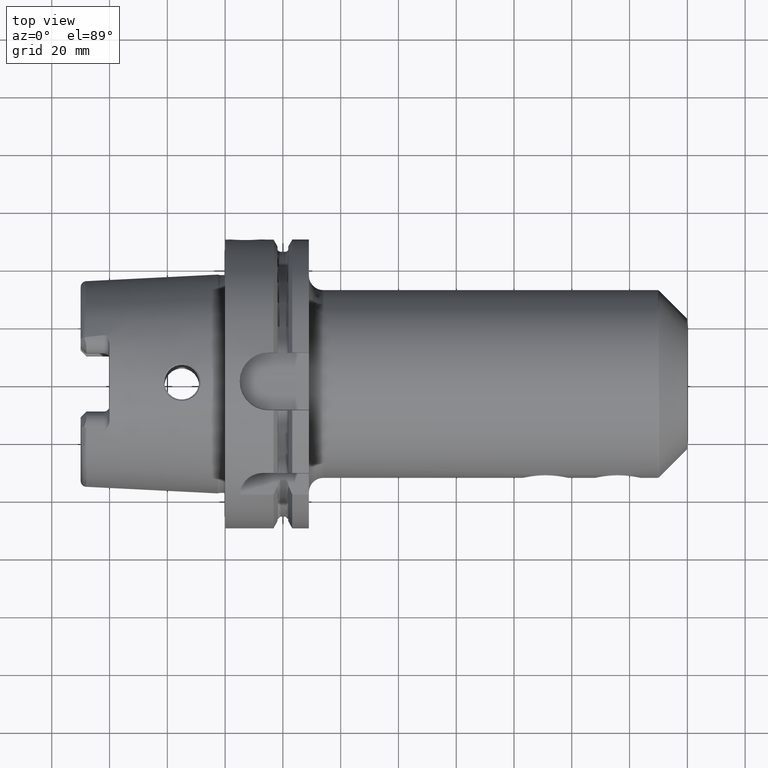
[diagram: clean part render]
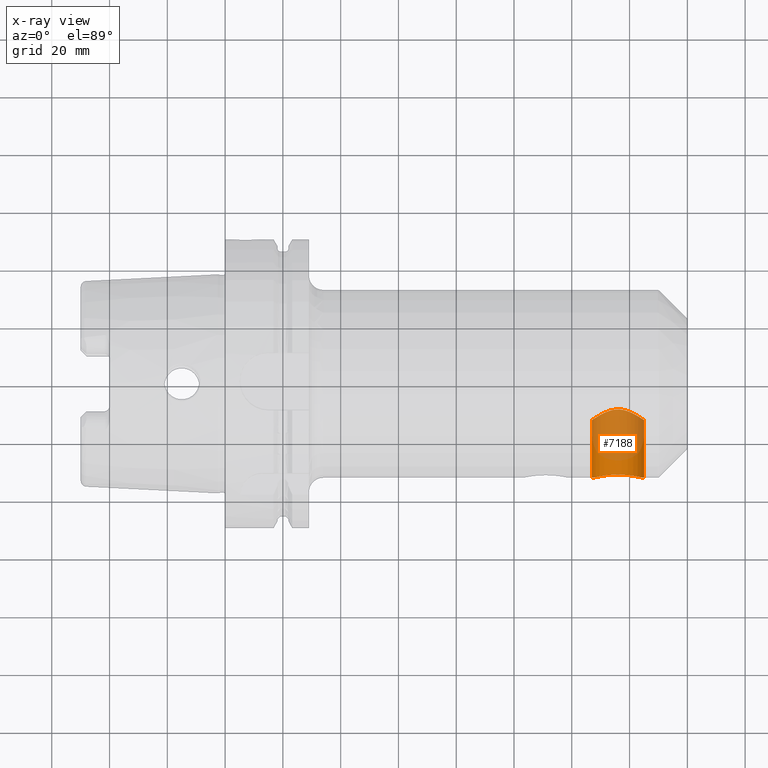
[diagram: x-ray — body ghosted, one internal face saturated and labeled with its STEP entity id]
A machine part, top view, then the same camera in x-ray: the body is ghosted and one INTERNAL B-rep face — a face not visible from any outside direction — is saturated and labeled: STEP entity #7188.
In plain terms, the highlighted cylindrical surface (edge-blend (fillet) strip) has radius 9 mm, axis along (0, -1, 0).
Its self-contained STEP definition (entity closure, byte-faithful):
#7021=CARTESIAN_POINT('',(1.45E2,-3.250001968344E1,0.E0));
#7022=CARTESIAN_POINT('',(1.45E2,-3.250001968344E1,-3.094881938547E-1));
#7023=CARTESIAN_POINT('',(1.449680654449E2,-3.249112512083E1,
-9.293102313036E-1));
#7024=CARTESIAN_POINT('',(1.448238499441E2,-3.245149692300E1,
-1.852074910782E0));
#7025=CARTESIAN_POINT('',(1.445846262735E2,-3.238704364230E1,
-2.756497811652E0));
#7026=CARTESIAN_POINT('',(1.442497119401E2,-3.229958386138E1,
-3.638572999592E0));
#7027=CARTESIAN_POINT('',(1.438233739831E2,-3.219293918069E1,
-4.482864519308E0));
#7028=CARTESIAN_POINT('',(1.433051774107E2,-3.207050160352E1,
-5.285672160082E0));
#7029=CARTESIAN_POINT('',(1.427053910497E2,-3.193871435273E1,
-6.028569251205E0));
#7030=CARTESIAN_POINT('',(1.420256433376E2,-3.180244172681E1,
-6.708027558683E0));
#7031=CARTESIAN_POINT('',(1.412822332854E2,-3.166950103985E1,
-7.307686562769E0));
#7032=CARTESIAN_POINT('',(1.404786872980E2,-3.154498235220E1,
-7.825785171339E0));
#7033=CARTESIAN_POINT('',(1.396338491225E2,-3.143578694650E1,
-8.251806861196E0));
#7034=CARTESIAN_POINT('',(1.387514553648E2,-3.134574458903E1,
-8.586227618675E0));
#7035=CARTESIAN_POINT('',(1.378479748790E2,-3.127919442270E1,
-8.824655138636E0));
#7036=CARTESIAN_POINT('',(1.369270598332E2,-3.123818118698E1,
-8.968211511703E0));
#7037=CARTESIAN_POINT('',(1.359999623654E2,-3.122439866946E1,
-9.015894739993E0));
#7038=CARTESIAN_POINT('',(1.350729246756E2,-3.123818177079E1,
-8.968209528071E0));
#7039=CARTESIAN_POINT('',(1.341519623220E2,-3.127919801651E1,
-8.824642381148E0));
#7040=CARTESIAN_POINT('',(1.332485232315E2,-3.134574662154E1,
-8.586220288935E0));
#7041=CARTESIAN_POINT('',(1.323661010604E2,-3.143579259863E1,
-8.251785376782E0));
#7042=CARTESIAN_POINT('',(1.315212866763E2,-3.154498617659E1,
-7.825769785806E0));
#7043=CARTESIAN_POINT('',(1.307177291485E2,-3.166950723306E1,
-7.307659954965E0));
#7044=CARTESIAN_POINT('',(1.299743280927E2,-3.180244723247E1,
-6.708001300673E0));
#7045=CARTESIAN_POINT('',(1.292945835654E2,-3.193871965722E1,
-6.028541653912E0));
#7046=CARTESIAN_POINT('',(1.286947956516E2,-3.207050778657E1,
-5.285634168612E0));
#7047=CARTESIAN_POINT('',(1.281766113350E2,-3.219294275361E1,
-4.482839781528E0));
#7048=CARTESIAN_POINT('',(1.277502651610E2,-3.229958971996E1,
-3.638520556875E0));
#7049=CARTESIAN_POINT('',(1.274153682222E2,-3.238704513561E1,
-2.756478906207E0));
#7050=CARTESIAN_POINT('',(1.271761432583E2,-3.245149877483E1,
-1.852042002204E0));
#7051=CARTESIAN_POINT('',(1.270319354214E2,-3.249112486027E1,
-9.293091508837E-1));
#7052=CARTESIAN_POINT('',(1.27E2,-3.250001974865E1,-3.094884400891E-1));
#7053=CARTESIAN_POINT('',(1.27E2,-3.250001974865E1,0.E0));
#7055=CARTESIAN_POINT('',(1.27E2,-1.25E1,0.E0));
#7056=CARTESIAN_POINT('',(1.27E2,-1.25E1,-2.762487769212E-1));
#7057=CARTESIAN_POINT('',(1.270254397223E2,-1.248166363746E1,
-8.314032196773E-1));
#7058=CARTESIAN_POINT('',(1.271419283458E2,-1.239805241619E1,
-1.664816731217E0));
#7059=CARTESIAN_POINT('',(1.273375002297E2,-1.225886212067E1,
-2.491536252482E0));
#7060=CARTESIAN_POINT('',(1.276186606911E2,-1.206147086625E1,
-3.318590935998E0));
#7061=CARTESIAN_POINT('',(1.279881228302E2,-1.180717121458E1,
-4.133514283220E0));
#7062=CARTESIAN_POINT('',(1.284544337494E2,-1.149504344549E1,
-4.935566438344E0));
#7063=CARTESIAN_POINT('',(1.290186194130E2,-1.113164989284E1,
-5.707528490983E0));
#7064=CARTESIAN_POINT('',(1.296834230360E2,-1.072570893948E1,
-6.436527228518E0));
#7065=CARTESIAN_POINT('',(1.304288793570E2,-1.030261344995E1,
-7.091630518619E0));
#7066=CARTESIAN_POINT('',(1.312392940898E2,-9.886223123009E0,
-7.658611124935E0));
#7067=CARTESIAN_POINT('',(1.320769814137E2,-9.510376852660E0,
-8.117591394108E0));
#7068=CARTESIAN_POINT('',(1.329018346860E2,-9.200607768960E0,
-8.464777658453E0));
#7069=CARTESIAN_POINT('',(1.337081764437E2,-8.961410136770E0,
-8.716106310867E0));
#7070=CARTESIAN_POINT('',(1.344865380540E2,-8.794801797226E0,
-8.883260387037E0));
#7071=CARTESIAN_POINT('',(1.352507475633E2,-8.696089976246E0,
-8.979438083985E0));
#7072=CARTESIAN_POINT('',(1.359999634255E2,-8.663968801506E0,
-9.010280842331E0));
#7073=CARTESIAN_POINT('',(1.367492745454E2,-8.696089536570E0,
-8.979438546549E0));
#7074=CARTESIAN_POINT('',(1.375134850332E2,-8.794806868942E0,
-8.883255320314E0));
#7075=CARTESIAN_POINT('',(1.382918190903E2,-8.961409222818E0,
-8.716107321343E0));
#7076=CARTESIAN_POINT('',(1.390981542487E2,-9.200604857935E0,
-8.464780225025E0));
#7077=CARTESIAN_POINT('',(1.399229913958E2,-9.510363853844E0,
-8.117607983925E0));
#7078=CARTESIAN_POINT('',(1.407607877896E2,-9.886262385400E0,
-7.658560590545E0));
#7079=CARTESIAN_POINT('',(1.415710934168E2,-1.030260069595E1,
-7.091646064252E0));
#7080=CARTESIAN_POINT('',(1.423165199594E2,-1.072567534720E1,
-6.436581601997E0));
#7081=CARTESIAN_POINT('',(1.429813054329E2,-1.113160280060E1,
-5.707619620398E0));
#7082=CARTESIAN_POINT('',(1.435455080853E2,-1.149500510150E1,
-4.935655541317E0));
#7083=CARTESIAN_POINT('',(1.440118239393E2,-1.180713502255E1,
-4.133618073272E0));
#7084=CARTESIAN_POINT('',(1.443813094425E2,-1.206145000844E1,
-3.318669121385E0));
#7085=CARTESIAN_POINT('',(1.446624797941E2,-1.225884798862E1,
-2.491605764117E0));
#7086=CARTESIAN_POINT('',(1.448580608698E2,-1.239804468661E1,
-1.664878938262E0));
#7087=CARTESIAN_POINT('',(1.449745594034E2,-1.248166300381E1,
-8.314250609619E-1));
#7088=CARTESIAN_POINT('',(1.45E2,-1.25E1,-2.762558110742E-1));
#7089=CARTESIAN_POINT('',(1.45E2,-1.25E1,0.E0));
#7125=DIRECTION('',(0.E0,1.E0,0.E0));
#7126=VECTOR('',#7125,2.000001968344E1);
#7127=CARTESIAN_POINT('',(1.45E2,-3.250001968344E1,0.E0));
#7128=LINE('',#7127,#7126);
#7165=DIRECTION('',(0.E0,1.E0,0.E0));
#7166=VECTOR('',#7165,2.000001974865E1);
#7167=CARTESIAN_POINT('',(1.27E2,-3.250001974865E1,0.E0));
#7168=LINE('',#7167,#7166);
#7169=VERTEX_POINT('',#7053);
#7170=VERTEX_POINT('',#7021);
#7171=VERTEX_POINT('',#7089);
#7172=VERTEX_POINT('',#7055);
#7173=CARTESIAN_POINT('',(1.36E2,6.672229199832E0,0.E0));
#7174=DIRECTION('',(0.E0,-1.E0,0.E0));
#7175=DIRECTION('',(-1.E0,0.E0,0.E0));
#7176=AXIS2_PLACEMENT_3D('',#7173,#7174,#7175);
#7177=CYLINDRICAL_SURFACE('',#7176,9.E0);
#7179=ORIENTED_EDGE('',*,*,#7178,.T.);
#7181=ORIENTED_EDGE('',*,*,#7180,.T.);
#7183=ORIENTED_EDGE('',*,*,#7182,.T.);
#7185=ORIENTED_EDGE('',*,*,#7184,.F.);
#7186=EDGE_LOOP('',(#7179,#7181,#7183,#7185));
#7187=FACE_OUTER_BOUND('',#7186,.F.);
#7188=ADVANCED_FACE('',(#7187),#7177,.F.);
#7054=B_SPLINE_CURVE_WITH_KNOTS('',3,(#7021,#7022,#7023,#7024,#7025,#7026,#7027,
#7028,#7029,#7030,#7031,#7032,#7033,#7034,#7035,#7036,#7037,#7038,#7039,#7040,
#7041,#7042,#7043,#7044,#7045,#7046,#7047,#7048,#7049,#7050,#7051,#7052,#7053),
.UNSPECIFIED.,.F.,.F.,(4,1,1,1,1,1,1,1,1,1,1,1,1,1,1,1,1,1,1,1,1,1,1,1,1,1,1,1,
1,1,4),(0.E0,3.333333333333E-2,6.666666666667E-2,1.E-1,1.333333333333E-1,
1.666666666667E-1,2.E-1,2.333333333333E-1,2.666666666667E-1,3.E-1,
3.333333333333E-1,3.666666666667E-1,4.E-1,4.333333333333E-1,4.666666666667E-1,
5.E-1,5.333333333333E-1,5.666666666667E-1,6.E-1,6.333333333333E-1,
6.666666666667E-1,7.E-1,7.333333333333E-1,7.666666666667E-1,8.E-1,
8.333333333333E-1,8.666666666667E-1,9.E-1,9.333333333333E-1,9.666666666667E-1,
1.E0),.UNSPECIFIED.);
#7090=B_SPLINE_CURVE_WITH_KNOTS('',3,(#7055,#7056,#7057,#7058,#7059,#7060,#7061,
#7062,#7063,#7064,#7065,#7066,#7067,#7068,#7069,#7070,#7071,#7072,#7073,#7074,
#7075,#7076,#7077,#7078,#7079,#7080,#7081,#7082,#7083,#7084,#7085,#7086,#7087,
#7088,#7089),.UNSPECIFIED.,.F.,.F.,(4,1,1,1,1,1,1,1,1,1,1,1,1,1,1,1,1,1,1,1,1,1,
1,1,1,1,1,1,1,1,1,1,4),(0.E0,3.125E-2,6.25E-2,9.375E-2,1.25E-1,1.5625E-1,
1.875E-1,2.1875E-1,2.5E-1,2.8125E-1,3.125E-1,3.4375E-1,3.75E-1,4.0625E-1,
4.375E-1,4.6875E-1,5.E-1,5.3125E-1,5.625E-1,5.9375E-1,6.25E-1,6.5625E-1,
6.875E-1,7.1875E-1,7.5E-1,7.8125E-1,8.125E-1,8.4375E-1,8.75E-1,9.0625E-1,
9.375E-1,9.6875E-1,1.E0),.UNSPECIFIED.);
#7178=EDGE_CURVE('',#7170,#7169,#7054,.T.);
#7180=EDGE_CURVE('',#7169,#7172,#7168,.T.);
#7182=EDGE_CURVE('',#7172,#7171,#7090,.T.);
#7184=EDGE_CURVE('',#7170,#7171,#7128,.T.);